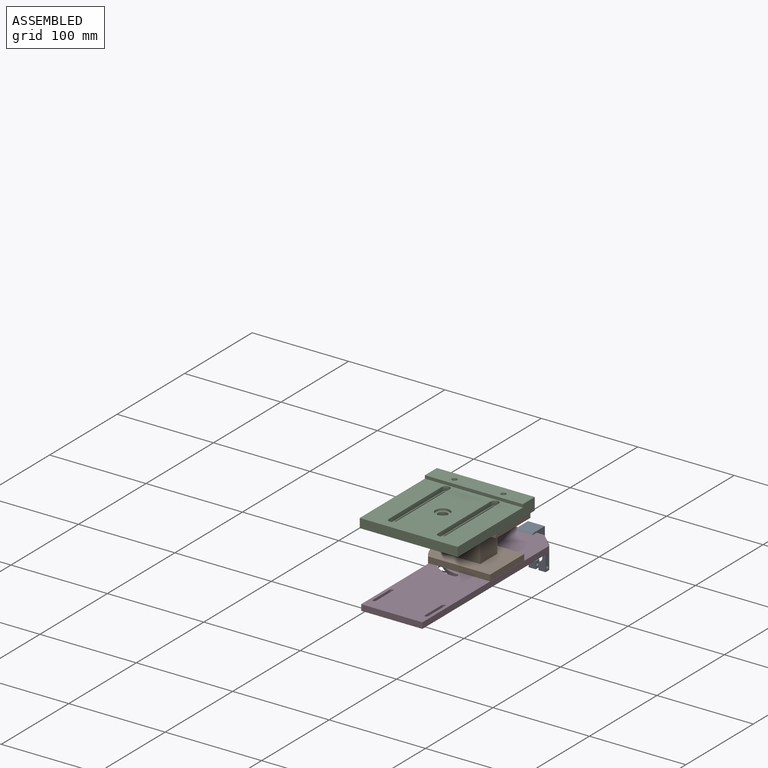
[diagram: assembled view]
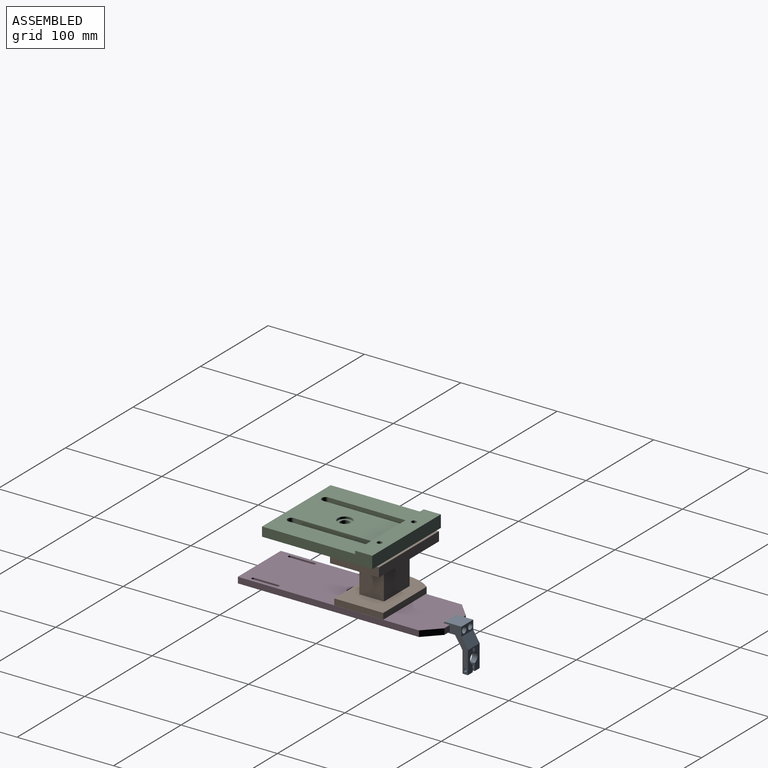
[diagram: assembled view, second angle]
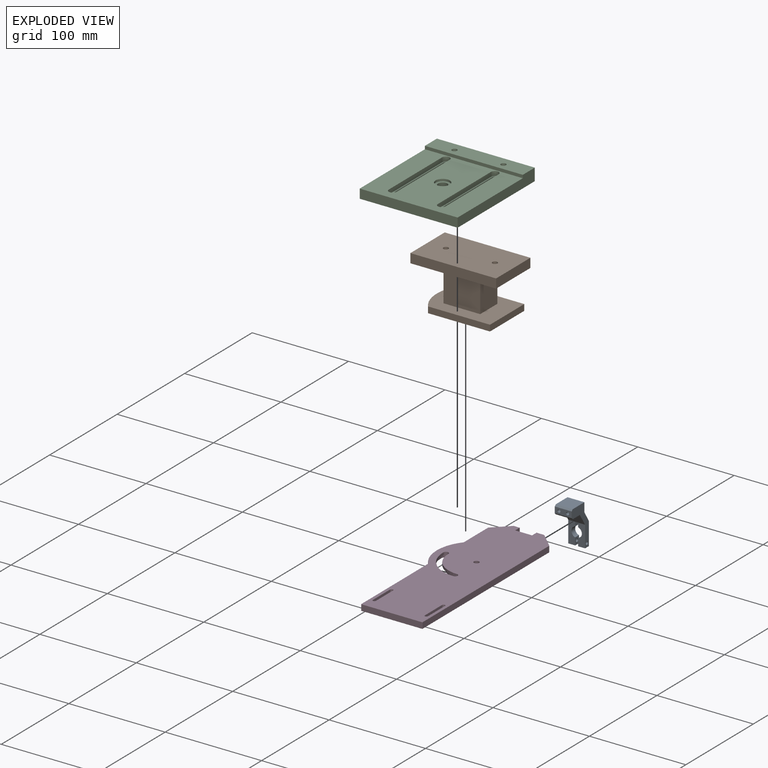
[diagram: exploded view]
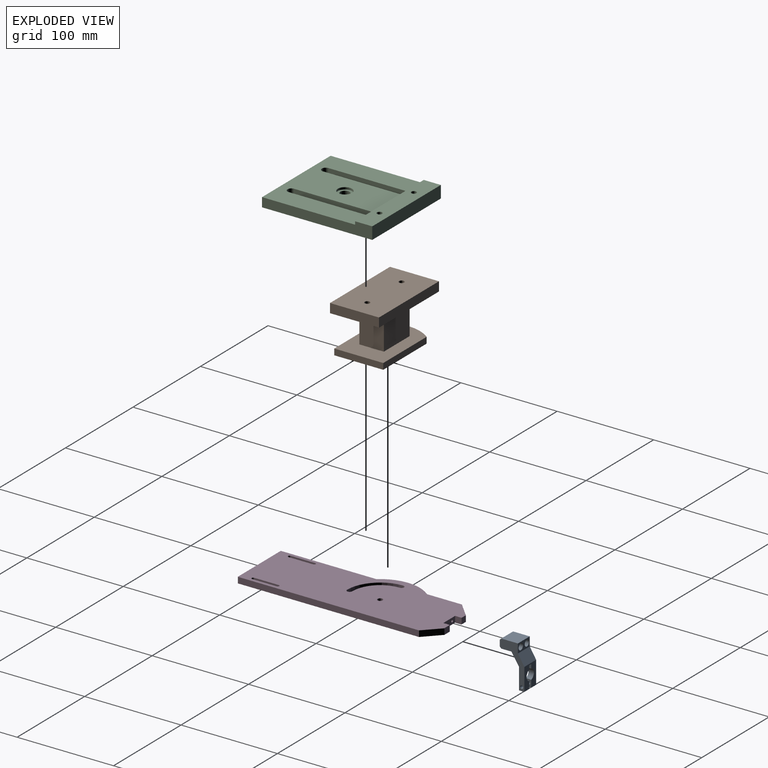
[diagram: exploded view, second angle]
ASSEMBLY  parts=4 mates=2
PART A: 30 faces, bbox 17.5x43.7x25.5 mm
  f0: cylinder r=1.59mm len=6.13mm, axis (0,0,1), area 61.1mm2, adj f4,f25
  f1: cylinder r=1.59mm len=6.13mm, axis (0,0,1), area 61.1mm2, adj f4,f27
  f2: plane 17.5x10.84mm, normal (0,0.52,-0.85), area 222.4mm2, adj f8,f10,f11,f23
  f3: plane 22.17x7.28mm, normal (0,0,1), area 131.3mm2, adj f6,f10,f14,f15,f16,f20
  f4: plane 17.5x6.35mm, normal (0,0,1), area 95.3mm2, adj f0,f1,f10,f11,f28,f29
  f5: plane 17.5x10.59mm, normal (0,-1,0), area 185.4mm2, adj f6,f10,f11,f29
  f6: plane 17.5x12.09mm, normal (0,-0.54,0.84), area 251.4mm2, adj f3,f5,f7,f10,f11,f17
  f7: plane 22.17x7.28mm, normal (0,0,1), area 131.3mm2, adj f6,f11,f12,f13,f18,f19
  f8: plane 23.42x17.5mm, normal (0,0,-1), area 284.4mm2, adj f2,f10,f11,f12,f13,f14,f15,f16
  f9: plane 17.5x17.3mm, normal (0,1,0), area 302.8mm2, adj f10,f11,f23,f28
  f10: plane 43.66x25.46mm, normal (1,0,0), area 368.5mm2, adj f2,f3,f4,f5,f6,f8,f9,f20
  f11: plane 43.66x25.46mm, normal (-1,0,0), area 368.5mm2, adj f2,f4,f5,f6,f7,f8,f9,f19
  f12: cylinder r=5.4mm len=10.39mm, axis (0,0,1), area 77.9mm2, adj f7,f8,f13,f18
  f13: plane 7.51x5.58mm, normal (1,0,0), area 33.7mm2, adj f7,f8,f12,f19,f22
  f14: plane 7.51x5.58mm, normal (-1,0,0), area 33.7mm2, adj f3,f8,f15,f20,f21
  f15: cylinder r=5.4mm len=10.39mm, axis (0,0,1), area 77.9mm2, adj f3,f8,f14,f16
  f16: plane 5.58x4.28mm, normal (-1,0,0), area 23.9mm2, adj f3,f8,f15,f17
  f17: plane 5.58x2.95mm, normal (0,-1,0), area 16.4mm2, adj f6,f8,f16,f18
  f18: plane 5.58x4.28mm, normal (1,0,0), area 23.9mm2, adj f7,f8,f12,f17
  f19: plane 7.28x5.58mm, normal (0,-1,0), area 40.6mm2, adj f7,f8,f11,f13
  f20: plane 7.28x5.58mm, normal (0,-1,0), area 40.6mm2, adj f3,f8,f10,f14
  f21: cylinder r=1.61mm len=7.28mm, axis (-1,0,0), area 73.7mm2, adj f10,f14
  f22: cylinder r=1.61mm len=7.28mm, axis (-1,0,0), area 73.7mm2, adj f11,f13
  f23: plane 17.5x9.4mm, normal (0,0,-1), area 100.6mm2, adj f2,f9,f10,f11,f24,f26
  f24: cylinder r=3.19mm len=12.7mm, axis (0,0,-1), area 254.4mm2, adj f23,f25
  f25: plane 6.38x6.38mm, normal (0,0,-1), area 24mm2, adj f0,f24
  f26: cylinder r=3.19mm len=12.7mm, axis (0,0,-1), area 254.4mm2, adj f23,f27
  f27: plane 6.38x6.38mm, normal (0,0,-1), area 24mm2, adj f1,f26
  f28: plane 17.5x1.52mm, normal (0,0.71,0.71), area 37.7mm2, adj f4,f9,f10,f11
  f29: plane 17.5x1.52mm, normal (0,-0.71,0.71), area 37.7mm2, adj f4,f5,f10,f11
PART B: 21 faces, bbox 88.9x51.4x50.8 mm
  f0: plane 88.9x50.8mm, normal (0,-1,0), area 3505.4mm2, adj f1,f2,f3,f4,f6,f7,f8,f9
  f1: plane 88.9x9.53mm, normal (0,0,-1), area 846.8mm2, adj f0,f2,f4,f5
  f2: plane 50.8x9.53mm, normal (1,0,0), area 483.9mm2, adj f0,f1,f3,f5
  f3: plane 88.9x9.53mm, normal (0,0,1), area 846.8mm2, adj f0,f2,f4,f5
  f4: plane 50.8x9.53mm, normal (-1,0,0), area 483.9mm2, adj f0,f1,f3,f5
  f5: plane 88.9x50.8mm, normal (0,1,0), area 4473.1mm2, adj f1,f2,f3,f4,f10,f11
  f6: plane 35.56x25.4mm, normal (-1,0,0), area 903.2mm2, adj f0,f7,f9,f17
  f7: plane 38.1x35.56mm, normal (0,0,-1), area 1354.8mm2, adj f0,f6,f8,f17
  f8: plane 35.56x25.4mm, normal (1,0,0), area 903.2mm2, adj f0,f7,f9,f17
  f9: plane 38.1x35.56mm, normal (0,0,1), area 1354.8mm2, adj f0,f6,f8,f17
  f10: cylinder r=2.62mm len=9.53mm, axis (0,-1,0), area 156.6mm2, adj f0,f5
  f11: cylinder r=2.62mm len=9.53mm, axis (0,-1,0), area 156.6mm2, adj f0,f5
  f12: cylinder r=41.27mm len=50.8mm, axis (0,1,0), area 347.5mm2, adj f13,f15,f16,f17
  f13: plane 64.28x6.35mm, normal (0,0,-1), area 408.2mm2, adj f12,f14,f16,f17
  f14: plane 50.8x6.35mm, normal (1,0,0), area 322.6mm2, adj f13,f15,f16,f17
  f15: plane 64.28x6.35mm, normal (0,0,1), area 408.2mm2, adj f12,f14,f16,f17
  f16: plane 73.03x50.8mm, normal (0,-1,0), area 3539.3mm2, adj f12,f13,f14,f15,f19,f20
  f17: plane 73.03x50.8mm, normal (0,1,0), area 2586.2mm2, adj f6,f7,f8,f9,f12,f13,f14,f15
  f18: cone r=0mm half-angle=59deg, axis (0,-1,0), area 17.1mm2, adj f19
  f19: cylinder r=2.16mm len=25.4mm, axis (0,-1,0), area 344.6mm2, adj f16,f18
  f20: cylinder r=2.16mm len=6.35mm, axis (0,-1,0), area 86.1mm2, adj f16,f17
PART C: 35 faces, bbox 101.6x12.7x114.3 mm
  f0: plane 101.6x17.73mm, normal (0,1,0), area 1758.8mm2, adj f1,f19,f20,f22,f25,f31
  f1: plane 114.3x12.7mm, normal (-1,0,0), area 1145mm2, adj f0,f18,f19,f21,f30,f31
  f2: cylinder r=4.04mm len=8.08mm, axis (0,1,0), area 60.3mm2, adj f3,f5,f28,f30
  f3: plane 78.74x4.57mm, normal (1,0,0), area 360mm2, adj f2,f4,f28,f30
  f4: cylinder r=4.04mm len=8.05mm, axis (0,1,0), area 55.7mm2, adj f3,f5,f28,f30
  f5: plane 78.74x4.57mm, normal (-1,0,0), area 360mm2, adj f2,f4,f28,f30
  f6: plane 78.74x4.57mm, normal (-1,0,0), area 360mm2, adj f7,f9,f29,f30
  f7: cylinder r=4.04mm len=8.08mm, axis (0,1,0), area 58mm2, adj f6,f8,f29,f30
  f8: plane 79.54x4.57mm, normal (1,0,0), area 363.7mm2, adj f7,f9,f29,f30
  f9: cylinder r=4.04mm len=8mm, axis (0,1,0), area 54.3mm2, adj f6,f8,f29,f30
  f10: plane 78.74x4.95mm, normal (1,0,0), area 390mm2, adj f14,f15,f18,f28
  f11: plane 79.24x4.95mm, normal (-1,0,0), area 392.5mm2, adj f14,f15,f18,f28
  f12: plane 78.74x4.95mm, normal (1,0,0), area 390mm2, adj f16,f17,f18,f29
  f13: plane 78.74x4.95mm, normal (-1,0,0), area 390mm2, adj f16,f17,f18,f29
  f14: cylinder r=2.54mm len=5.08mm, axis (0,-1,0), area 39.5mm2, adj f10,f11,f18,f28
  f15: cylinder r=2.54mm len=5.03mm, axis (0,-1,0), area 37mm2, adj f10,f11,f18,f28
  f16: cylinder r=2.54mm len=5.08mm, axis (0,-1,0), area 39.5mm2, adj f12,f13,f18,f29
  f17: cylinder r=2.54mm len=5.08mm, axis (0,-1,0), area 39.5mm2, adj f12,f13,f18,f29
  f18: plane 114.3x101.6mm, normal (0,-1,0), area 10585.5mm2, adj f1,f10,f11,f12,f13,f14,f15,f16
  f19: plane 101.6x12.7mm, normal (0,0,-1), area 1290.3mm2, adj f0,f1,f18,f20
  f20: plane 114.3x12.7mm, normal (1,0,0), area 1145mm2, adj f0,f18,f19,f21,f30,f31
  f21: plane 101.6x9.53mm, normal (0,0,1), area 967.7mm2, adj f1,f18,f20,f30
  f22: cylinder r=2.62mm len=7.11mm, axis (0,-1,0), area 116.9mm2, adj f0,f23
  f23: plane 8.64x8.64mm, normal (0,-1,0), area 37.1mm2, adj f22,f24
  f24: cylinder r=4.32mm len=8.64mm, axis (0,-1,0), area 151.6mm2, adj f18,f23
  f25: cylinder r=2.62mm len=7.11mm, axis (0,-1,0), area 116.9mm2, adj f0,f26
  f26: plane 8.64x8.64mm, normal (0,-1,0), area 37.1mm2, adj f25,f27
  f27: cylinder r=4.32mm len=8.64mm, axis (0,-1,0), area 151.6mm2, adj f18,f26
  f28: plane 86.82x8.08mm, normal (0,1,0), area 266.5mm2, adj f2,f3,f4,f5,f10,f11,f14,f15
  f29: plane 86.82x8.08mm, normal (0,1,0), area 263.8mm2, adj f6,f7,f8,f9,f12,f13,f16,f17
  f30: plane 101.6x96.57mm, normal (0,1,0), area 8270.6mm2, adj f1,f2,f3,f4,f5,f6,f7,f8
  f31: plane 101.6x3.18mm, normal (0,0,1), area 322.6mm2, adj f0,f1,f20,f30
  f32: cylinder r=4.78mm len=9.55mm, axis (0,1,0), area 221mm2, adj f18,f33
  f33: plane 14.78x14.78mm, normal (0,1,0), area 100mm2, adj f32,f34
  f34: cylinder r=7.39mm len=14.78mm, axis (0,1,0), area 100.3mm2, adj f30,f33
PART D: 85 faces, bbox 73x6.4x203.2 mm
  f0: cylinder r=2.62mm len=5.23mm, axis (0,1,0), area 21.9mm2, adj f1,f3,f29,f65
  f1: cylinder r=34.37mm len=34.37mm, axis (0,1,0), area 144mm2, adj f0,f2,f29,f63
  f2: cylinder r=2.62mm len=5.23mm, axis (0,1,0), area 21.9mm2, adj f1,f3,f29,f62
  f3: cylinder r=29.13mm len=29.13mm, axis (0,1,0), area 122.1mm2, adj f0,f2,f29,f64
  f4: plane 99.17x6.22mm, normal (-1,0,0), area 615.9mm2, adj f5,f17,f42,f49,f54
  f5: cylinder r=41.27mm len=52.75mm, axis (0,1,0), area 348.8mm2, adj f4,f6,f42,f47
  f6: plane 36.31x6.22mm, normal (-1,0,0), area 224.7mm2, adj f5,f7,f16,f43,f47,f83
  f7: plane 15.88x15.24mm, normal (-0.69,0,-0.72), area 134.1mm2, adj f6,f8,f44,f83
  f8: plane 6.32x6.1mm, normal (0,0,-1), area 38.6mm2, adj f7,f9,f45,f84
  f9: plane 6.73x6.35mm, normal (1,0,0), area 42.7mm2, adj f8,f10,f16,f17,f45,f84
  f10: plane 17.49x6.35mm, normal (0,0,-1), area 100.9mm2, adj f9,f11,f16,f17,f22,f24
  f11: plane 6.73x6.35mm, normal (-1,0,0), area 42.7mm2, adj f10,f12,f16,f17,f46,f60
  f12: plane 7.94x6.1mm, normal (0,0,-1), area 48.4mm2, adj f11,f13,f46,f60
  f13: plane 15.88x15.24mm, normal (0.69,0,-0.72), area 134.1mm2, adj f12,f14,f48,f59
  f14: plane 187.83x6.1mm, normal (1,0,0), area 1145mm2, adj f13,f50,f55,f58
  f15: plane 63.25x6.1mm, normal (0,0,1), area 385.5mm2, adj f51,f54,f55,f56
  f16: plane 202.95x72.77mm, normal (0,-1,0), area 11989.6mm2, adj f6,f9,f10,f11,f38,f39,f40,f41
  f17: plane 202.95x72.77mm, normal (0,1,0), area 12322.5mm2, adj f4,f9,f10,f11,f42,f43,f44,f45
  f18: cylinder r=2.62mm len=5.23mm, axis (0,-1,0), area 43.8mm2, adj f19,f61
  f19: plane 9.5x9.5mm, normal (0,-1,0), area 49.4mm2, adj f18,f20
  f20: cylinder r=4.75mm len=9.5mm, axis (0,-1,0), area 102.3mm2, adj f19,f82
  f21: cone r=0mm half-angle=59deg, axis (0,0,-1), area 5.9mm2, adj f22
  f22: cylinder r=1.27mm len=10.16mm, axis (0,0,-1), area 81.1mm2, adj f10,f21
  f23: cone r=0mm half-angle=59deg, axis (0,0,-1), area 5.9mm2, adj f24
  f24: cylinder r=1.27mm len=10.16mm, axis (0,0,-1), area 81.1mm2, adj f10,f23
  f25: cylinder r=36.58mm len=36.58mm, axis (0,-1,0), area 197mm2, adj f26,f28,f29,f40
  f26: cylinder r=4.83mm len=9.65mm, axis (0,-1,0), area 52mm2, adj f25,f27,f29,f38
  f27: cylinder r=26.92mm len=26.92mm, axis (0,-1,0), area 145mm2, adj f26,f28,f29,f39
  f28: cylinder r=4.83mm len=9.65mm, axis (0,-1,0), area 52mm2, adj f25,f27,f29,f41
  f29: plane 41.4x41.4mm, normal (0,-1,0), area 272.1mm2, adj f0,f1,f2,f3,f25,f26,f27,f28
  f30: cylinder r=1.59mm len=6.1mm, axis (0,-1,0), area 31mm2, adj f31,f33,f66,f78
  f31: plane 25.3x6.1mm, normal (-1,0,0), area 154.3mm2, adj f30,f32,f67,f79
  f32: cylinder r=1.59mm len=6.1mm, axis (0,-1,0), area 31.6mm2, adj f31,f33,f69,f81
  f33: plane 25.21x6.1mm, normal (1,0,0), area 153.7mm2, adj f30,f32,f68,f80
  f34: plane 25.4x6.1mm, normal (1,0,0), area 154.8mm2, adj f35,f37,f71,f75
  f35: cylinder r=1.59mm len=6.1mm, axis (0,-1,0), area 30.4mm2, adj f34,f36,f73,f77
  f36: plane 25.4x6.1mm, normal (-1,0,0), area 154.8mm2, adj f35,f37,f72,f76
  f37: cylinder r=1.59mm len=6.1mm, axis (0,-1,0), area 30.4mm2, adj f34,f36,f70,f74
  f38: cone r=4.83mm half-angle=45deg, axis (0,-1,0), area 2.8mm2, adj f16,f26,f39,f40
  f39: cone r=26.8mm half-angle=45deg, axis (0,1,0), area 7.6mm2, adj f16,f27,f38,f41
  f40: cone r=36.58mm half-angle=45deg, axis (0,-1,0), area 10.3mm2, adj f16,f25,f38,f41
  f41: cone r=4.83mm half-angle=45deg, axis (0,-1,0), area 2.8mm2, adj f16,f28,f39,f40
  f42: cone r=41.27mm half-angle=45deg, axis (0,-1,0), area 10.3mm2, adj f4,f5,f17,f43
  f43: plane 36.16x0.13mm, normal (-0.71,0.71,0), area 6.5mm2, adj f6,f17,f42,f44
  f44: plane 15.93x15.29mm, normal (-0.49,0.71,-0.51), area 3.9mm2, adj f7,f17,f43,f45
  f45: plane 6.32x0.13mm, normal (0,0.71,-0.71), area 1.1mm2, adj f8,f9,f17,f44
  f46: plane 7.94x0.13mm, normal (0,-0.71,-0.71), area 1.4mm2, adj f11,f12,f16,f48
  f47: cone r=41.15mm half-angle=45deg, axis (0,1,0), area 10.3mm2, adj f5,f6,f16,f49
  f48: plane 15.93x15.29mm, normal (0.49,-0.71,-0.51), area 3.9mm2, adj f13,f16,f46,f50
  f49: plane 99.02x0.13mm, normal (-0.71,-0.71,0), area 17.8mm2, adj f4,f16,f47,f52
  f50: plane 187.83x0.13mm, normal (0.71,-0.71,0), area 33.7mm2, adj f14,f16,f48,f53
  f51: plane 63.25x0.13mm, normal (0,-0.71,0.71), area 11.4mm2, adj f15,f16,f52,f53
  f52: plane 0.13x0.13mm, normal (-0.58,-0.58,0.58), area 0mm2, adj f49,f51,f54
  f53: plane 0.13x0.13mm, normal (0.58,-0.58,0.58), area 0mm2, adj f50,f51,f55
  f54: plane 6.22x0.13mm, normal (-0.71,0,0.71), area 1.1mm2, adj f4,f15,f52,f56
  f55: plane 6.1x0.13mm, normal (0.71,0,0.71), area 1.1mm2, adj f14,f15,f53,f57
  f56: plane 63.37x0.13mm, normal (0,0.71,0.71), area 11.4mm2, adj f15,f17,f54,f57
  f57: plane 0.13x0.13mm, normal (0.58,0.58,0.58), area 0mm2, adj f55,f56,f58
  f58: plane 187.83x0.13mm, normal (0.71,0.71,0), area 33.7mm2, adj f14,f17,f57,f59
  f59: plane 15.93x15.29mm, normal (0.49,0.71,-0.51), area 3.9mm2, adj f13,f17,f58,f60
  f60: plane 7.94x0.13mm, normal (0,0.71,-0.71), area 1.4mm2, adj f11,f12,f17,f59
  f61: cone r=2.62mm half-angle=45deg, axis (0,1,0), area 3mm2, adj f17,f18
  f62: cone r=2.74mm half-angle=45deg, axis (0,1,0), area 1.5mm2, adj f2,f17,f63,f64
  f63: cone r=34.49mm half-angle=45deg, axis (0,1,0), area 9.7mm2, adj f1,f17,f62,f65
  f64: cone r=29.13mm half-angle=45deg, axis (0,-1,0), area 8.2mm2, adj f3,f17,f62,f65
  f65: cone r=2.74mm half-angle=45deg, axis (0,1,0), area 1.5mm2, adj f0,f17,f63,f64
  f66: cone r=1.71mm half-angle=45deg, axis (0,1,0), area 0.9mm2, adj f17,f30,f67,f68
  f67: plane 25.3x0.13mm, normal (-0.71,0.71,0), area 4.5mm2, adj f17,f31,f66,f69
  f68: plane 25.21x0.13mm, normal (0.71,0.71,0), area 4.5mm2, adj f17,f33,f66,f69
  f69: cone r=1.71mm half-angle=45deg, axis (0,1,0), area 1mm2, adj f17,f32,f67,f68
  f70: cone r=1.71mm half-angle=45deg, axis (0,1,0), area 0.9mm2, adj f17,f37,f71,f72
  f71: plane 25.4x0.13mm, normal (0.71,0.71,0), area 4.6mm2, adj f17,f34,f70,f73
  f72: plane 25.4x0.13mm, normal (-0.71,0.71,0), area 4.6mm2, adj f17,f36,f70,f73
  f73: cone r=1.71mm half-angle=45deg, axis (0,1,0), area 0.9mm2, adj f17,f35,f71,f72
  f74: cone r=1.59mm half-angle=45deg, axis (0,-1,0), area 0.9mm2, adj f16,f37,f75,f76
  f75: plane 25.4x0.13mm, normal (0.71,-0.71,0), area 4.6mm2, adj f16,f34,f74,f77
  f76: plane 25.4x0.13mm, normal (-0.71,-0.71,0), area 4.6mm2, adj f16,f36,f74,f77
  f77: cone r=1.59mm half-angle=45deg, axis (0,-1,0), area 0.9mm2, adj f16,f35,f75,f76
  f78: cone r=1.59mm half-angle=45deg, axis (0,-1,0), area 0.9mm2, adj f16,f30,f79,f80
  f79: plane 25.3x0.13mm, normal (-0.71,-0.71,0), area 4.5mm2, adj f16,f31,f78,f81
  f80: plane 25.21x0.13mm, normal (0.71,-0.71,0), area 4.5mm2, adj f16,f33,f78,f81
  f81: cone r=1.59mm half-angle=45deg, axis (0,-1,0), area 1mm2, adj f16,f32,f79,f80
  f82: cone r=4.75mm half-angle=45deg, axis (0,-1,0), area 5.4mm2, adj f16,f20
  f83: plane 15.93x15.42mm, normal (-0.49,-0.71,-0.51), area 4mm2, adj f6,f7,f16,f84
  f84: plane 6.32x0.13mm, normal (0,-0.71,-0.71), area 1.1mm2, adj f8,f9,f16,f83
PLACE A rot(axis=(1,0,0),90deg) t=(-132.18,21.74,93.34)mm
PLACE B rot(axis=(1,0,0),90deg) t=(-84.53,-23.86,152.65)mm
PLACE C rot(axis=(1,0,0),90deg) t=(-179.78,-26.4,165.35)mm
PLACE D rot(axis=(1,0,0),90deg) t=(-90.88,28.47,101.22)mm
MATE planar C.f2 <-> B.f10  axis (0,0,-1) through (-154.38,-49.26,152.65)mm
MATE planar A.f4 <-> D.f10  axis (0,-1,0) through (-123.43,21.74,98.04)mm
